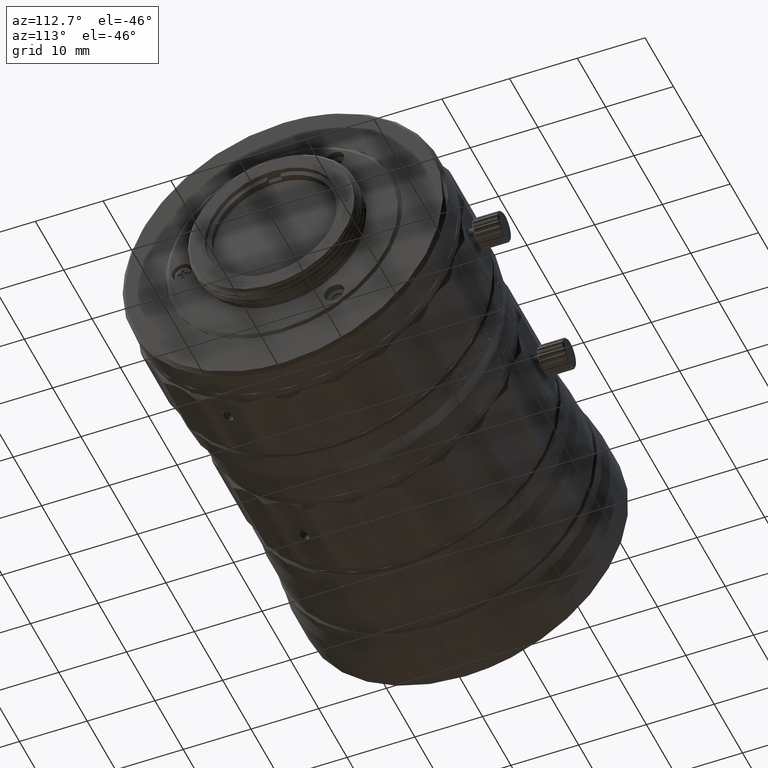
[diagram: clean part render]
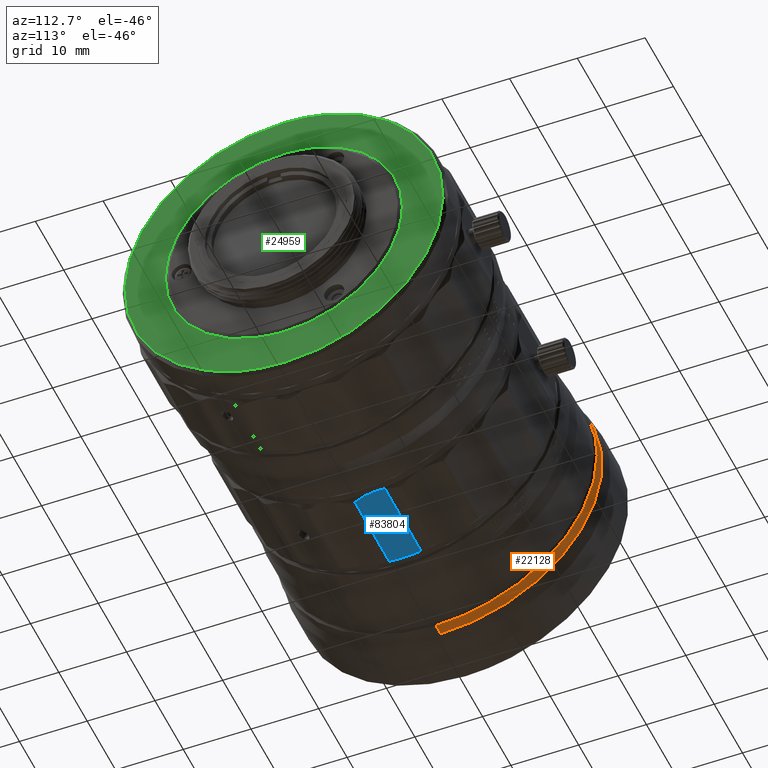
[diagram: same view with three faces highlighted in distinct colors, each labeled with its STEP entity id]
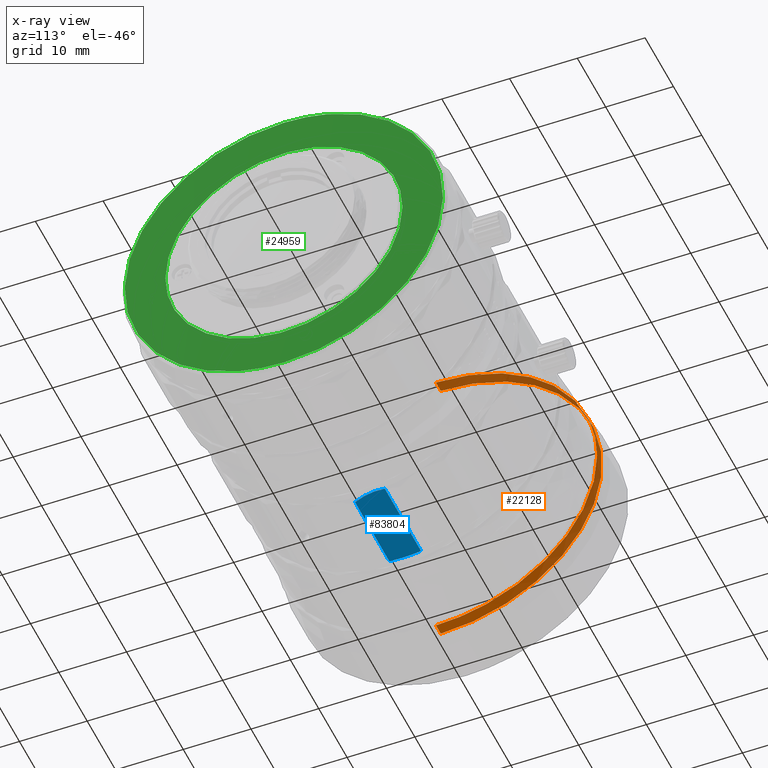
[diagram: x-ray of the same camera — body ghosted, the three highlighted faces saturated]
A machine part, auxiliary view with three faces highlighted in distinct colors.
The next image is the same camera in x-ray (body ghosted, the three faces saturated) — at least one of them is partly hidden behind the body in this view.
Their STEP definitions:

[orange] entity #22128 — the highlighted face is a freeform B-spline surface patch.
#197 = CARTESIAN_POINT ( 'NONE',  ( 4.769999999999999574, -5.950000492305209926E-09, -23.80000000000000071 ) ) ;
#1173 = CARTESIAN_POINT ( 'NONE',  ( 4.769999999999999574, 23.80000000000000071, 4.881461598664881593E-09 ) ) ;
#2033 = FACE_OUTER_BOUND ( 'NONE', #38216, .T. ) ;
#2082 = CARTESIAN_POINT ( 'NONE',  ( 4.770000000000082174, 23.79999999714050674, -13.94171722266906599 ) ) ;
#2598 = VERTEX_POINT ( 'NONE', #74803 ) ;
#6366 = VERTEX_POINT ( 'NONE', #8466 ) ;
#6526 = CARTESIAN_POINT ( 'NONE',  ( 4.769999999999999574, -5.950000492305209926E-09, 23.80000000000000071 ) ) ;
#8098 = CARTESIAN_POINT ( 'NONE',  ( 4.769999999999999574, -9.762923197329763186E-09, 23.80000000000000071 ) ) ;
#8466 = CARTESIAN_POINT ( 'NONE',  ( 6.469999999999999751, 23.80000000000000071, -4.881461035172710322E-09 ) ) ;
#11566 = EDGE_CURVE ( 'NONE', #12604, #6366, #31521, .T. ) ;
#12561 = CARTESIAN_POINT ( 'NONE',  ( 6.469999999999999751, 13.94171720802469494, 23.80000000571898155 ) ) ;
#12604 = VERTEX_POINT ( 'NONE', #74455 ) ;
#15003 = CARTESIAN_POINT ( 'NONE',  ( 6.469999999999999751, 23.79999999714051384, 13.94171722266907310 ) ) ;
#15422 = CARTESIAN_POINT ( 'NONE',  ( 4.769999999999999574, 13.94171721778761253, -23.80000000000000071 ) ) ;
#15769 = EDGE_CURVE ( 'NONE', #2598, #22667, #23166, .T. ) ;
#17754 = CARTESIAN_POINT ( 'NONE',  ( 6.469999999999999751, -4.881461035172710322E-09, 23.80000000000000071 ) ) ;
#18617 = CARTESIAN_POINT ( 'NONE',  ( 6.469999999999999751, 23.80000000000000071, -4.881461035172710322E-09 ) ) ;
#20248 = CARTESIAN_POINT ( 'NONE',  ( 4.769999999999999574, -5.950000492305209926E-09, -23.80000000000000071 ) ) ;
#22128 = ADVANCED_FACE ( 'NONE', ( #2033 ), #23925, .F. ) ;
#22667 = VERTEX_POINT ( 'NONE', #197 ) ;
#23166 =( BOUNDED_CURVE ( )  B_SPLINE_CURVE ( 3, ( #61354, #54441, #41428, #34963, #2082, #54869, #20248 ),
 .UNSPECIFIED., .F., .F. ) 
 B_SPLINE_CURVE_WITH_KNOTS ( ( 4, 3, 4 ),
 ( -3.141592653589795336, -1.570796326794897668, 0.0000000000000000000 ),
 .UNSPECIFIED. ) 
 CURVE ( )  GEOMETRIC_REPRESENTATION_ITEM ( )  RATIONAL_B_SPLINE_CURVE ( ( 1.000000000000000000, 0.8047378540760217192, 0.8047378540760217192, 1.000000000000000000, 0.8047378540760217192, 0.8047378540760217192, 1.000000000000000000 ) ) 
 REPRESENTATION_ITEM ( '' )  );
#23785 =( BOUNDED_CURVE ( )  B_SPLINE_CURVE ( 3, ( #38859, #65238, #58764, #52265 ),
 .UNSPECIFIED., .F., .F. ) 
 B_SPLINE_CURVE_WITH_KNOTS ( ( 4, 4 ),
 ( -1.570796326794895004, 0.0000000000000000000 ),
 .UNSPECIFIED. ) 
 CURVE ( )  GEOMETRIC_REPRESENTATION_ITEM ( )  RATIONAL_B_SPLINE_CURVE ( ( 1.000000000000000000, 0.8047378540760217192, 0.8047378540760217192, 1.000000000000000000 ) ) 
 REPRESENTATION_ITEM ( '' )  );
#23925 =( BOUNDED_SURFACE ( )  B_SPLINE_SURFACE ( 1, 3, ( 
 ( #35340, #15422, #34913, #1173, #74692, #42244, #8098 ),
 ( #61307, #60015, #47023, #81187, #15003, #55242, #60438 ) ),
 .UNSPECIFIED., .F., .F., .F. ) 
 B_SPLINE_SURFACE_WITH_KNOTS ( ( 2, 2 ),
 ( 4, 3, 4 ),
 ( 1.044915787882500111E-15, 1.000000000000000000 ),
 ( 0.0000000000000000000, 0.5000000000000000000, 1.000000000000000000 ),
 .UNSPECIFIED. ) 
 GEOMETRIC_REPRESENTATION_ITEM ( )  RATIONAL_B_SPLINE_SURFACE ( (
 ( 1.000000000000000000, 0.8047378540760217192, 0.8047378540760217192, 1.000000000000000000, 0.8047378540760217192, 0.8047378540760217192, 1.000000000000000000),
 ( 1.000000000000000000, 0.8047378540760217192, 0.8047378540760217192, 1.000000000000000000, 0.8047378540760217192, 0.8047378540760217192, 1.000000000000000000) ) ) 
 REPRESENTATION_ITEM ( '' )  SURFACE ( )  );
#26924 = VERTEX_POINT ( 'NONE', #42525 ) ;
#28062 = CARTESIAN_POINT ( 'NONE',  ( 4.769999999999999574, -5.950000492305209926E-09, -23.80000000000000071 ) ) ;
#28248 = ORIENTED_EDGE ( 'NONE', *, *, #15769, .F. ) ;
#29324 = B_SPLINE_CURVE_WITH_KNOTS ( 'NONE', 1,
 ( #6526, #55373 ),
 .UNSPECIFIED., .F., .F.,
 ( 2, 2 ),
 ( -1.000000000000000000, 0.0000000000000000000 ),
 .UNSPECIFIED. ) ;
#29334 = CARTESIAN_POINT ( 'NONE',  ( 6.469999999999999751, 1.627153887338930056E-09, -23.80000000000000071 ) ) ;
#30104 = ORIENTED_EDGE ( 'NONE', *, *, #73341, .T. ) ;
#31521 =( BOUNDED_CURVE ( )  B_SPLINE_CURVE ( 3, ( #17754, #12561, #58455, #18617 ),
 .UNSPECIFIED., .F., .F. ) 
 B_SPLINE_CURVE_WITH_KNOTS ( ( 4, 4 ),
 ( -1.570796326794895004, 0.0000000000000000000 ),
 .UNSPECIFIED. ) 
 CURVE ( )  GEOMETRIC_REPRESENTATION_ITEM ( )  RATIONAL_B_SPLINE_CURVE ( ( 1.000000000000000000, 0.8047378540760217192, 0.8047378540760217192, 1.000000000000000000 ) ) 
 REPRESENTATION_ITEM ( '' )  );
#34913 = CARTESIAN_POINT ( 'NONE',  ( 4.769999999999999574, 23.80000000285949469, -13.94171721290615196 ) ) ;
#34963 = CARTESIAN_POINT ( 'NONE',  ( 4.770000000000051976, 23.80000000000000071, -4.881456314003285039E-09 ) ) ;
#35340 = CARTESIAN_POINT ( 'NONE',  ( 4.769999999999999574, 0.0000000000000000000, -23.80000000000000071 ) ) ;
#38216 = EDGE_LOOP ( 'NONE', ( #68189, #80564, #30104, #83932, #28248 ) ) ;
#38859 = CARTESIAN_POINT ( 'NONE',  ( 6.469999999999999751, 23.80000000000000071, -4.881461035172710322E-09 ) ) ;
#41393 = B_SPLINE_CURVE_WITH_KNOTS ( 'NONE', 1,
 ( #29334, #28062 ),
 .UNSPECIFIED., .F., .F.,
 ( 2, 2 ),
 ( -1.000000000000000000, 0.0000000000000000000 ),
 .UNSPECIFIED. ) ;
#41428 = CARTESIAN_POINT ( 'NONE',  ( 4.770000000000022666, 23.80000000285949113, 13.94171721290615373 ) ) ;
#42244 = CARTESIAN_POINT ( 'NONE',  ( 4.769999999999999574, 13.94171720802468961, 23.80000000571899577 ) ) ;
#42525 = CARTESIAN_POINT ( 'NONE',  ( 6.469999999999999751, 1.627153887338930056E-09, -23.80000000000000071 ) ) ;
#44364 = EDGE_CURVE ( 'NONE', #2598, #12604, #29324, .T. ) ;
#47023 = CARTESIAN_POINT ( 'NONE',  ( 6.469999999999999751, 23.80000000285949469, -13.94171721290615196 ) ) ;
#52265 = CARTESIAN_POINT ( 'NONE',  ( 6.469999999999999751, 1.627153887338930056E-09, -23.80000000000000071 ) ) ;
#52410 = EDGE_CURVE ( 'NONE', #26924, #22667, #41393, .T. ) ;
#54441 = CARTESIAN_POINT ( 'NONE',  ( 4.769999999999999574, 13.94171721778761430, 23.80000000000000071 ) ) ;
#54869 = CARTESIAN_POINT ( 'NONE',  ( 4.770000000000105267, 13.94171720802469849, -23.80000000571898155 ) ) ;
#55242 = CARTESIAN_POINT ( 'NONE',  ( 6.469999999999999751, 13.94171720802468961, 23.80000000571899577 ) ) ;
#55373 = CARTESIAN_POINT ( 'NONE',  ( 6.469999999999999751, -4.881461035172710322E-09, 23.80000000000000071 ) ) ;
#58455 = CARTESIAN_POINT ( 'NONE',  ( 6.469999999999999751, 23.79999999714050674, 13.94171722266906954 ) ) ;
#58764 = CARTESIAN_POINT ( 'NONE',  ( 6.469999999999999751, 13.94171721778761430, -23.80000000000000071 ) ) ;
#60015 = CARTESIAN_POINT ( 'NONE',  ( 6.469999999999999751, 13.94171721778761253, -23.80000000000000071 ) ) ;
#60438 = CARTESIAN_POINT ( 'NONE',  ( 6.469999999999999751, -9.762923197329763186E-09, 23.80000000000000071 ) ) ;
#61307 = CARTESIAN_POINT ( 'NONE',  ( 6.469999999999999751, 0.0000000000000000000, -23.80000000000000071 ) ) ;
#61354 = CARTESIAN_POINT ( 'NONE',  ( 4.769999999999999574, -5.950000492305209926E-09, 23.80000000000000071 ) ) ;
#65238 = CARTESIAN_POINT ( 'NONE',  ( 6.469999999999999751, 23.80000000285949113, -13.94171721290615196 ) ) ;
#68189 = ORIENTED_EDGE ( 'NONE', *, *, #44364, .T. ) ;
#73341 = EDGE_CURVE ( 'NONE', #6366, #26924, #23785, .T. ) ;
#74455 = CARTESIAN_POINT ( 'NONE',  ( 6.469999999999999751, -4.881461035172710322E-09, 23.80000000000000071 ) ) ;
#74692 = CARTESIAN_POINT ( 'NONE',  ( 4.769999999999999574, 23.79999999714051384, 13.94171722266907310 ) ) ;
#74803 = CARTESIAN_POINT ( 'NONE',  ( 4.769999999999999574, -5.950000492305209926E-09, 23.80000000000000071 ) ) ;
#80564 = ORIENTED_EDGE ( 'NONE', *, *, #11566, .T. ) ;
#81187 = CARTESIAN_POINT ( 'NONE',  ( 6.469999999999999751, 23.80000000000000071, 4.881461598664881593E-09 ) ) ;
#83932 = ORIENTED_EDGE ( 'NONE', *, *, #52410, .T. ) ;

[blue] entity #83804 — the highlighted face is a freeform B-spline surface patch.
#272 = CARTESIAN_POINT ( 'NONE',  ( 32.27999999677599874, 1.457109551797764579, -22.90515753301488289 ) ) ;
#1134 = CARTESIAN_POINT ( 'NONE',  ( 32.26587094612600737, 1.070177678048383152, -22.94170347521233211 ) ) ;
#2255 = EDGE_CURVE ( 'NONE', #37574, #7650, #60305, .T. ) ;
#3095 = CARTESIAN_POINT ( 'NONE',  ( 19.28000000322399998, 2.210965546794885661, -22.84866383605221785 ) ) ;
#3966 = EDGE_CURVE ( 'NONE', #69818, #22777, #63121, .T. ) ;
#4426 = CARTESIAN_POINT ( 'NONE',  ( 32.17557794114490122, 3.209657516488040319, -22.82990308941354840 ) ) ;
#5566 = B_SPLINE_CURVE_WITH_KNOTS ( 'NONE', 3,
 ( #51798, #26683, #52233, #53064 ),
 .UNSPECIFIED., .F., .F.,
 ( 4, 4 ),
 ( -1.000000000000000000, 0.0000000000000000000 ),
 .UNSPECIFIED. ) ;
#6300 = CARTESIAN_POINT ( 'NONE',  ( 19.20200000000000173, 1.680053511340783512, -22.82990308927469414 ) ) ;
#6736 = CARTESIAN_POINT ( 'NONE',  ( 19.20200000000000173, -1.329233105894599420, -23.35174938064852412 ) ) ;
#7102 = ORIENTED_EDGE ( 'NONE', *, *, #3966, .T. ) ;
#7650 = VERTEX_POINT ( 'NONE', #62725 ) ;
#9587 = CARTESIAN_POINT ( 'NONE',  ( 19.71955022587420103, -1.329233103309227948, -23.35174938016949753 ) ) ;
#10006 = CARTESIAN_POINT ( 'NONE',  ( 19.31480735427867046, 2.709626969741594227, -22.82990308908979671 ) ) ;
#13124 = EDGE_CURVE ( 'NONE', #53673, #37574, #5566, .T. ) ;
#14522 = CARTESIAN_POINT ( 'NONE',  ( 32.22466121506350589, 0.6192571066009576741, -22.99762213748767792 ) ) ;
#18831 = CARTESIAN_POINT ( 'NONE',  ( 32.35799999999999699, -1.329233105894599420, -23.35174938064852412 ) ) ;
#19727 = B_SPLINE_CURVE_WITH_KNOTS ( 'NONE', 1,
 ( #72813, #71949 ),
 .UNSPECIFIED., .F., .F.,
 ( 2, 2 ),
 ( -1.000000000000000000, 0.0000000000000000000 ),
 .UNSPECIFIED. ) ;
#21214 = VERTEX_POINT ( 'NONE', #36696 ) ;
#21372 = ORIENTED_EDGE ( 'NONE', *, *, #61889, .T. ) ;
#22777 = VERTEX_POINT ( 'NONE', #70105 ) ;
#26109 = B_SPLINE_CURVE_WITH_KNOTS ( 'NONE', 3,
 ( #9587, #35986, #28199, #49772 ),
 .UNSPECIFIED., .F., .F.,
 ( 4, 4 ),
 ( -1.000000000000000000, 0.0000000000000000000 ),
 .UNSPECIFIED. ) ;
#26683 = CARTESIAN_POINT ( 'NONE',  ( 19.32637686785333386, 0.5704752841583217160, -22.99637686635721678 ) ) ;
#28199 = CARTESIAN_POINT ( 'NONE',  ( 19.49105551913333301, -0.4423691626633756702, -23.16105551767118698 ) ) ;
#29290 = EDGE_CURVE ( 'NONE', #7650, #81545, #19727, .T. ) ;
#29468 = CARTESIAN_POINT ( 'NONE',  ( 19.38442205885514724, 3.209657519609705023, -22.82990308897464971 ) ) ;
#30789 = CARTESIAN_POINT ( 'NONE',  ( 32.24519264572133181, 2.709626969741594227, -22.82990308908979671 ) ) ;
#31820 = CARTESIAN_POINT ( 'NONE',  ( 19.20200000000000173, 3.209657516408271682, -22.82990308899999476 ) ) ;
#32679 = CARTESIAN_POINT ( 'NONE',  ( 19.20200000000000173, 0.1604599902861284233, -23.00461411665193978 ) ) ;
#33000 = ORIENTED_EDGE ( 'NONE', *, *, #2255, .T. ) ;
#33565 = CARTESIAN_POINT ( 'NONE',  ( 31.84044977400115428, -1.329233105566833828, -23.35174938029784997 ) ) ;
#34439 = CARTESIAN_POINT ( 'NONE',  ( 32.09393521501598912, -0.3296386441897780628, -23.13909875525505555 ) ) ;
#34872 = CARTESIAN_POINT ( 'NONE',  ( 32.18521761533224179, 0.2974866220508049497, -23.04295066738458786 ) ) ;
#35986 = CARTESIAN_POINT ( 'NONE',  ( 19.59119539516000330, -0.8858325707029077734, -23.24842611075178311 ) ) ;
#36696 = CARTESIAN_POINT ( 'NONE',  ( 19.71955022587420103, -1.329233103309227948, -23.35174938016949753 ) ) ;
#37574 = VERTEX_POINT ( 'NONE', #64919 ) ;
#39173 = CARTESIAN_POINT ( 'NONE',  ( 32.35799999999999699, 0.1604599902861284233, -23.00461411665193978 ) ) ;
#41063 = CARTESIAN_POINT ( 'NONE',  ( 19.41913059673269970, 3.349535387065700062E-10, -23.08913059621859887 ) ) ;
#42558 = CARTESIAN_POINT ( 'NONE',  ( 32.27999999919045138, 1.715055638947205141, -22.88582714600144641 ) ) ;
#45214 = CARTESIAN_POINT ( 'NONE',  ( 32.35799999999999699, 1.680053511340783512, -22.82990308927469414 ) ) ;
#46097 = B_SPLINE_CURVE_WITH_KNOTS ( 'NONE', 3,
 ( #4426, #30789, #83554, #71458 ),
 .UNSPECIFIED., .F., .F.,
 ( 4, 4 ),
 ( -1.000000000000000000, 0.0000000000000000000 ),
 .UNSPECIFIED. ) ;
#47164 = ORIENTED_EDGE ( 'NONE', *, *, #29290, .T. ) ;
#48635 = ORIENTED_EDGE ( 'NONE', *, *, #50331, .T. ) ;
#49772 = CARTESIAN_POINT ( 'NONE',  ( 19.41913059673269970, 3.349535387065700062E-10, -23.08913059621859887 ) ) ;
#50331 = EDGE_CURVE ( 'NONE', #22777, #21214, #84964, .T. ) ;
#51605 = ORIENTED_EDGE ( 'NONE', *, *, #79450, .T. ) ;
#51798 = CARTESIAN_POINT ( 'NONE',  ( 19.41913059673269970, 3.349535387065700062E-10, -23.08913059621859887 ) ) ;
#52233 = CARTESIAN_POINT ( 'NONE',  ( 19.28000000322399998, 1.142892869044690451, -22.92870481813812944 ) ) ;
#53045 = CARTESIAN_POINT ( 'NONE',  ( 32.20170150775724238, 0.4261691964095388752, -23.02443873628739368 ) ) ;
#53064 = CARTESIAN_POINT ( 'NONE',  ( 19.28000000082349885, 1.715055643642210192, -22.88582714566360110 ) ) ;
#53673 = VERTEX_POINT ( 'NONE', #41063 ) ;
#53917 = CARTESIAN_POINT ( 'NONE',  ( 32.27999999919045138, 1.715055638947205141, -22.88582714600144641 ) ) ;
#54348 = CARTESIAN_POINT ( 'NONE',  ( 31.98509594276000101, -0.8295543152225133277, -23.23531188801453595 ) ) ;
#59499 = FACE_OUTER_BOUND ( 'NONE', #61643, .T. ) ;
#60305 = B_SPLINE_CURVE_WITH_KNOTS ( 'NONE', 3,
 ( #81394, #3095, #10006, #29468 ),
 .UNSPECIFIED., .F., .F.,
 ( 4, 4 ),
 ( -1.000000000000000000, 0.0000000000000000000 ),
 .UNSPECIFIED. ) ;
#61643 = EDGE_LOOP ( 'NONE', ( #78208, #33000, #47164, #21372, #7102, #48635, #51605 ) ) ;
#61889 = EDGE_CURVE ( 'NONE', #81545, #69818, #46097, .T. ) ;
#62725 = CARTESIAN_POINT ( 'NONE',  ( 19.38442205885514724, 3.209657519609705023, -22.82990308897464971 ) ) ;
#63121 = B_SPLINE_CURVE_WITH_KNOTS ( 'NONE', 3,
 ( #53917, #272, #1134, #14522, #53045, #34872, #80295, #34439, #54348, #80721 ),
 .UNSPECIFIED., .F., .F.,
 ( 4, 1, 1, 2, 2, 4 ),
 ( -1.000000000000000000, -0.7499999999999987788, -0.6249999999999982236, -0.5624999999999978906, -0.4999999999999975575, 0.0000000000000000000 ),
 .UNSPECIFIED. ) ;
#64919 = CARTESIAN_POINT ( 'NONE',  ( 19.28000000082349885, 1.715055643642210192, -22.88582714566360110 ) ) ;
#65559 = CARTESIAN_POINT ( 'NONE',  ( 32.35799999999999699, 3.209657516408271682, -22.82990308899999476 ) ) ;
#69818 = VERTEX_POINT ( 'NONE', #42558 ) ;
#70105 = CARTESIAN_POINT ( 'NONE',  ( 31.84044977400115428, -1.329233105566833828, -23.35174938029784997 ) ) ;
#71458 = CARTESIAN_POINT ( 'NONE',  ( 32.27999999919045138, 1.715055638947205141, -22.88582714600144641 ) ) ;
#71949 = CARTESIAN_POINT ( 'NONE',  ( 32.17557794114490122, 3.209657516488040319, -22.82990308941354840 ) ) ;
#72813 = CARTESIAN_POINT ( 'NONE',  ( 19.38442205885514724, 3.209657519609705023, -22.82990308897464971 ) ) ;
#74223 = CARTESIAN_POINT ( 'NONE',  ( 19.71955022587420103, -1.329233103309227948, -23.35174938016949753 ) ) ;
#78208 = ORIENTED_EDGE ( 'NONE', *, *, #13124, .T. ) ;
#78296 =( BOUNDED_SURFACE ( )  B_SPLINE_SURFACE ( 1, 3, ( 
 ( #18831, #39173, #45214, #65559 ),
 ( #6736, #32679, #6300, #31820 ) ),
 .UNSPECIFIED., .F., .F., .F. ) 
 B_SPLINE_SURFACE_WITH_KNOTS ( ( 2, 2 ),
 ( 4, 4 ),
 ( 0.0000000000000000000, 1.000000000000000000 ),
 ( 0.0000000000000000000, 1.000000000000000000 ),
 .UNSPECIFIED. ) 
 GEOMETRIC_REPRESENTATION_ITEM ( )  RATIONAL_B_SPLINE_SURFACE ( (
 ( 1.000000000000000000, 0.9956370041098686618, 0.9956370041098686618, 1.000000000000000000),
 ( 1.000000000000000000, 0.9956370041098686618, 0.9956370041098686618, 1.000000000000000000) ) ) 
 REPRESENTATION_ITEM ( '' )  SURFACE ( )  );
#79450 = EDGE_CURVE ( 'NONE', #21214, #53673, #26109, .T. ) ;
#80295 = CARTESIAN_POINT ( 'NONE',  ( 32.17609663864600833, 0.2311849920105874812, -23.05282857619269876 ) ) ;
#80721 = CARTESIAN_POINT ( 'NONE',  ( 31.84044977400115428, -1.329233105566833828, -23.35174938029784997 ) ) ;
#81394 = CARTESIAN_POINT ( 'NONE',  ( 19.28000000082349885, 1.715055643642210192, -22.88582714566360110 ) ) ;
#81545 = VERTEX_POINT ( 'NONE', #84074 ) ;
#83554 = CARTESIAN_POINT ( 'NONE',  ( 32.27999999677599874, 2.210965546794885661, -22.84866383605221785 ) ) ;
#83804 = ADVANCED_FACE ( 'NONE', ( #59499 ), #78296, .T. ) ;
#84074 = CARTESIAN_POINT ( 'NONE',  ( 32.17557794114490122, 3.209657516488040319, -22.82990308941354840 ) ) ;
#84964 = B_SPLINE_CURVE_WITH_KNOTS ( 'NONE', 1,
 ( #33565, #74223 ),
 .UNSPECIFIED., .F., .F.,
 ( 2, 2 ),
 ( -1.000000000000000000, 0.0000000000000000000 ),
 .UNSPECIFIED. ) ;

[green] entity #24959 — the highlighted face is a freeform B-spline surface patch.
#329 = CARTESIAN_POINT ( 'NONE',  ( 60.11770000000001346, 2.292586318527240152, 17.50000000248226328 ) ) ;
#2679 = CARTESIAN_POINT ( 'NONE',  ( 60.11769957200000647, -6.426573372610190329E-09, -23.49999735999345063 ) ) ;
#2738 = CARTESIAN_POINT ( 'NONE',  ( 60.11770000000001346, -13.99547200165090111, -10.75326532932669110 ) ) ;
#2988 = CARTESIAN_POINT ( 'NONE',  ( 60.11769999999999925, 6.094352455622207287, 22.74814748551914434 ) ) ;
#3157 = CARTESIAN_POINT ( 'NONE',  ( 60.11770000000001346, -4.578886563665014009, -17.04522655470270820 ) ) ;
#4007 = CARTESIAN_POINT ( 'NONE',  ( 60.11770000000001346, -2.292586318527240152, -17.50000000248226328 ) ) ;
#4465 = CARTESIAN_POINT ( 'NONE',  ( 60.11770000000000636, -18.68434009257223849, -14.33578662822841920 ) ) ;
#7812 = CARTESIAN_POINT ( 'NONE',  ( 60.11770000000000636, 23.78199733199999955, -23.78199733199999955 ) ) ;
#9022 = CARTESIAN_POINT ( 'NONE',  ( 60.11769957200000647, -1.406759730189306122E-09, 23.49999735999345063 ) ) ;
#9056 = CARTESIAN_POINT ( 'NONE',  ( 60.11770000000001346, 22.30023417683530340, -7.570924682519849291 ) ) ;
#9225 = CARTESIAN_POINT ( 'NONE',  ( 60.11770000000001346, -15.29055692598348593, -8.815033720014008978 ) ) ;
#9473 = CARTESIAN_POINT ( 'NONE',  ( 60.11769999999999925, 17.70546245976166944, 15.52855253728110796 ) ) ;
#9641 = CARTESIAN_POINT ( 'NONE',  ( 60.11770000000000636, 17.50000000248225973, -2.292586318527269906 ) ) ;
#10513 = CARTESIAN_POINT ( 'NONE',  ( 60.11770000000000636, -11.77601134539860084, -20.39472726174725636 ) ) ;
#10934 = CARTESIAN_POINT ( 'NONE',  ( 60.11770000000002057, -22.74814742210050866, -6.094352455622161102 ) ) ;
#11365 = CARTESIAN_POINT ( 'NONE',  ( 60.11769999999999925, -20.39472726174728479, 11.77601134539856709 ) ) ;
#11792 = CARTESIAN_POINT ( 'NONE',  ( 60.11769999999999925, -22.30023417683531051, 7.570924682519851956 ) ) ;
#12078 = VERTEX_POINT ( 'NONE', #9022 ) ;
#13808 = VERTEX_POINT ( 'NONE', #43589 ) ;
#13848 = FACE_OUTER_BOUND ( 'NONE', #78747, .T. ) ;
#14666 = CARTESIAN_POINT ( 'NONE',  ( 60.11769957200000647, -6.426573372610190329E-09, -23.49999735999345063 ) ) ;
#15269 = CARTESIAN_POINT ( 'NONE',  ( 60.11770000000000636, -17.50000000082740215, -4.785746665357729014E-09 ) ) ;
#15527 = CARTESIAN_POINT ( 'NONE',  ( 60.11770000000002057, 11.77601140881725073, -20.39472726174726702 ) ) ;
#15944 = CARTESIAN_POINT ( 'NONE',  ( 60.11770000000001346, 22.30023417683531761, 7.570924682519815541 ) ) ;
#16795 = CARTESIAN_POINT ( 'NONE',  ( 60.11769999999999925, 15.52855253728111506, 17.70546245976166944 ) ) ;
#16998 = CARTESIAN_POINT ( 'NONE',  ( 60.11770000000001346, -22.30023417683531761, -7.570924682519805771 ) ) ;
#17279 = CARTESIAN_POINT ( 'NONE',  ( 60.11770000000000636, 17.50000000082740215, -1.047587150627769928E-09 ) ) ;
#17412 = CARTESIAN_POINT ( 'NONE',  ( 60.11770000000001346, -6.094352455622148668, 22.74814742210051577 ) ) ;
#18296 = ORIENTED_EDGE ( 'NONE', *, *, #36909, .T. ) ;
#19652 = EDGE_LOOP ( 'NONE', ( #67784, #64179 ) ) ;
#19791 = CARTESIAN_POINT ( 'NONE',  ( 60.11770000000001346, -10.75326532932672130, 13.99547200165086025 ) ) ;
#20402 = CARTESIAN_POINT ( 'NONE',  ( 60.11769957200000647, -6.426573372610190329E-09, -23.49999735999345063 ) ) ;
#22437 = CARTESIAN_POINT ( 'NONE',  ( 60.11770000000001346, 14.33578662822842276, -18.68434009257223494 ) ) ;
#22781 = B_SPLINE_CURVE_WITH_KNOTS ( 'NONE', 3,
 ( #14666, #80008, #74380, #41484, #67886, #76089, #15527, #22437, #48823, #37133, #62253, #75219, #81707, #9056, #22858, #50080, #63078, #68313, #36291, #36711, #15944, #23713, #82972, #41912, #9473, #16795, #56615, #63517, #43176, #29362, #2988, #49248, #76502, #42341 ),
 .UNSPECIFIED., .F., .F.,
 ( 4, 2, 2, 2, 2, 2, 2, 2, 2, 2, 2, 2, 2, 2, 2, 2, 4 ),
 ( 0.0000000000000000000, 0.1963495408493624306, 0.3926990816987248611, 0.5890486225480870974, 0.7853981633974495002, 0.9817477042468117920, 1.178097245096173973, 1.374446785945536265, 1.570796326794898334, 1.767145867644260626, 1.963495408493622474, 2.159844949342984766, 2.356194490192346613, 2.552544031041708905, 2.748893571891070753, 2.945243112740432601, 3.141592653589795336 ),
 .UNSPECIFIED. ) ;
#22858 = CARTESIAN_POINT ( 'NONE',  ( 60.11770000000001346, 22.74814748551916566, -6.094352455622155773 ) ) ;
#23459 = CARTESIAN_POINT ( 'NONE',  ( 60.11770000000001346, 10.75326532932672485, -13.99547200165086913 ) ) ;
#23713 = CARTESIAN_POINT ( 'NONE',  ( 60.11769999999999925, 21.12209901595986139, 10.41519461347082043 ) ) ;
#24351 = CARTESIAN_POINT ( 'NONE',  ( 60.11770000000001346, -23.49999735198037243, -1.539307788212998407 ) ) ;
#24959 = ADVANCED_FACE ( 'NONE', ( #44591, #13848 ), #33295, .T. ) ;
#25017 = CARTESIAN_POINT ( 'NONE',  ( 60.11770000000001346, -8.815033720013962792, 15.29055692598350902 ) ) ;
#25204 = CARTESIAN_POINT ( 'NONE',  ( 60.11770000000000636, -10.41519461347080977, -21.12209901595987205 ) ) ;
#25633 = CARTESIAN_POINT ( 'NONE',  ( 60.11770000000000636, -22.74814748551916210, 6.094352455622153997 ) ) ;
#25907 = B_SPLINE_CURVE_WITH_KNOTS ( 'NONE', 3,
 ( #70882, #29790, #85123, #52683, #64827, #19791, #25017, #72155, #39715, #329, #79085, #58768, #59610, #59186, #46189, #72590, #66513, #58351 ),
 .UNSPECIFIED., .F., .F.,
 ( 4, 2, 2, 2, 2, 2, 2, 2, 4 ),
 ( 0.0000000000000000000, 0.3926990816987244171, 0.7853981633974488341, 1.178097245096173307, 1.570796326794897668, 1.963495408493622030, 2.356194490192346613, 2.748893571891070753, 3.141592653589795336 ),
 .UNSPECIFIED. ) ;
#28681 = CARTESIAN_POINT ( 'NONE',  ( 60.11770000000001346, 17.04522655470267622, -4.578886563665071741 ) ) ;
#29362 = CARTESIAN_POINT ( 'NONE',  ( 60.11770000000001346, 7.570924682519819982, 22.30023417683531761 ) ) ;
#29790 = CARTESIAN_POINT ( 'NONE',  ( 60.11770000000000636, -17.50000000248226684, 2.292586318527269906 ) ) ;
#30368 = CARTESIAN_POINT ( 'NONE',  ( 60.11770000000001346, -8.815033593176687887, -15.29055705282079458 ) ) ;
#30830 = CARTESIAN_POINT ( 'NONE',  ( 60.11770000000001346, -17.70546245976166588, -15.52855253728110796 ) ) ;
#31260 = CARTESIAN_POINT ( 'NONE',  ( 60.11769999999999925, -10.41519461347077957, 21.12209901595988271 ) ) ;
#31697 = CARTESIAN_POINT ( 'NONE',  ( 60.11770000000001346, -23.34875554969154621, 3.074891648591792315 ) ) ;
#32117 = CARTESIAN_POINT ( 'NONE',  ( 60.11770000000000636, -11.77601140881724895, 20.39472726174726347 ) ) ;
#33295 = B_SPLINE_SURFACE_WITH_KNOTS ( 'NONE', 1, 1, ( 
 ( #67067, #7812 ),
 ( #79617, #41096 ) ),
 .UNSPECIFIED., .F., .F., .F.,
 ( 2, 2 ),
 ( 2, 2 ),
 ( 0.0000000000000000000, 1.000000000000000000 ),
 ( 0.0000000000000000000, 1.000000000000000000 ),
 .UNSPECIFIED. ) ;
#36291 = CARTESIAN_POINT ( 'NONE',  ( 60.11770000000001346, 23.34875561311019254, 3.074891648591783433 ) ) ;
#36711 = CARTESIAN_POINT ( 'NONE',  ( 60.11770000000000636, 22.74814742210050866, 6.094352455622157549 ) ) ;
#36909 = EDGE_CURVE ( 'NONE', #12078, #70052, #61405, .T. ) ;
#37133 = CARTESIAN_POINT ( 'NONE',  ( 60.11770000000002057, 17.70546245976166233, -15.52855253728113283 ) ) ;
#37339 = CARTESIAN_POINT ( 'NONE',  ( 60.11770000000001346, -15.52855253728112750, 17.70546245976165878 ) ) ;
#37771 = CARTESIAN_POINT ( 'NONE',  ( 60.11770000000002767, -23.34875561311020320, -3.074891648591785209 ) ) ;
#38198 = CARTESIAN_POINT ( 'NONE',  ( 60.11770000000000636, -7.570924682519813764, -22.30023417683531761 ) ) ;
#39192 = EDGE_CURVE ( 'NONE', #13808, #57913, #25907, .T. ) ;
#39715 = CARTESIAN_POINT ( 'NONE',  ( 60.11770000000001346, -2.292586318527240152, 17.50000000248226328 ) ) ;
#41096 = CARTESIAN_POINT ( 'NONE',  ( 60.11770000000000636, -23.78199733199999955, -23.78199733199999955 ) ) ;
#41484 = CARTESIAN_POINT ( 'NONE',  ( 60.11770000000001346, 6.094352455622149556, -22.74814742210050511 ) ) ;
#41912 = CARTESIAN_POINT ( 'NONE',  ( 60.11770000000000636, 18.68434009257223849, 14.33578662822842276 ) ) ;
#42341 = CARTESIAN_POINT ( 'NONE',  ( 60.11769957200000647, -1.406759730189306122E-09, 23.49999735999345063 ) ) ;
#42512 = CARTESIAN_POINT ( 'NONE',  ( 60.11770000000001346, 8.815033720013955687, -15.29055692598350724 ) ) ;
#43176 = CARTESIAN_POINT ( 'NONE',  ( 60.11770000000002057, 10.41519461347082043, 21.12209901595987560 ) ) ;
#43379 = CARTESIAN_POINT ( 'NONE',  ( 60.11769999999999925, -21.12209901595986850, -10.41519461347082398 ) ) ;
#43589 = CARTESIAN_POINT ( 'NONE',  ( 60.11770000000000636, -17.50000000082740215, -4.785746665357729014E-09 ) ) ;
#44231 = CARTESIAN_POINT ( 'NONE',  ( 60.11770000000001346, -3.074891648591794979, 23.34875561311019254 ) ) ;
#44591 = FACE_BOUND ( 'NONE', #19652, .T. ) ;
#46189 = CARTESIAN_POINT ( 'NONE',  ( 60.11770000000001346, 15.29055692598348770, 8.815033720014003649 ) ) ;
#48144 = CARTESIAN_POINT ( 'NONE',  ( 60.11770000000000636, 17.50000000082740215, -1.047587150627769928E-09 ) ) ;
#48823 = CARTESIAN_POINT ( 'NONE',  ( 60.11770000000000636, 15.52855253728112928, -17.70546245976164457 ) ) ;
#49248 = CARTESIAN_POINT ( 'NONE',  ( 60.11770000000001346, 3.074891648591729254, 23.34875554969154621 ) ) ;
#49413 = CARTESIAN_POINT ( 'NONE',  ( 60.11770000000001346, -17.50000000248226328, -2.292586318527162437 ) ) ;
#50080 = CARTESIAN_POINT ( 'NONE',  ( 60.11770000000001346, 23.34875554969153555, -3.074891648591791871 ) ) ;
#50282 = CARTESIAN_POINT ( 'NONE',  ( 60.11769957200000647, -1.406759730189306122E-09, 23.49999735999345063 ) ) ;
#50666 = EDGE_CURVE ( 'NONE', #57913, #13808, #84804, .T. ) ;
#51162 = CARTESIAN_POINT ( 'NONE',  ( 60.11770000000001346, -14.33578669164707620, -18.68434009257224560 ) ) ;
#51633 = ORIENTED_EDGE ( 'NONE', *, *, #53780, .T. ) ;
#52446 = CARTESIAN_POINT ( 'NONE',  ( 60.11770000000000636, -3.074891648591731919, -23.34875554969154976 ) ) ;
#52683 = CARTESIAN_POINT ( 'NONE',  ( 60.11769999999999214, -15.29055705282081590, 8.815033593176632820 ) ) ;
#53780 = EDGE_CURVE ( 'NONE', #70052, #12078, #22781, .T. ) ;
#56615 = CARTESIAN_POINT ( 'NONE',  ( 60.11770000000001346, 14.33578669164707797, 18.68434009257224560 ) ) ;
#57248 = CARTESIAN_POINT ( 'NONE',  ( 60.11770000000001346, -18.68434009257222428, 14.33578669164710817 ) ) ;
#57686 = CARTESIAN_POINT ( 'NONE',  ( 60.11770000000001346, -21.12209901595988626, 10.41519461347078845 ) ) ;
#57913 = VERTEX_POINT ( 'NONE', #17279 ) ;
#58351 = CARTESIAN_POINT ( 'NONE',  ( 60.11770000000000636, 17.50000000082740215, -1.047587150627769928E-09 ) ) ;
#58768 = CARTESIAN_POINT ( 'NONE',  ( 60.11770000000001346, 8.815033593176689664, 15.29055705282080524 ) ) ;
#58947 = CARTESIAN_POINT ( 'NONE',  ( 60.11769999999999925, -1.539307788212943118, -23.49999735198036532 ) ) ;
#59186 = CARTESIAN_POINT ( 'NONE',  ( 60.11770000000001346, 13.99547200165089222, 10.75326532932669643 ) ) ;
#59610 = CARTESIAN_POINT ( 'NONE',  ( 60.11770000000001346, 10.75326532932670354, 13.99547200165089400 ) ) ;
#61405 = B_SPLINE_CURVE_WITH_KNOTS ( 'NONE', 3,
 ( #50282, #76707, #44231, #17412, #77996, #31260, #32117, #84880, #37339, #70641, #57248, #11365, #57686, #11792, #25633, #31697, #70215, #24351, #37771, #10934, #16998, #43379, #63716, #4465, #30830, #69783, #51162, #10513, #25204, #38198, #78425, #52446, #58947, #20402 ),
 .UNSPECIFIED., .F., .F.,
 ( 4, 2, 2, 2, 2, 2, 2, 2, 2, 2, 2, 2, 2, 2, 2, 2, 4 ),
 ( 0.0000000000000000000, 0.1963495408493622640, 0.3926990816987245281, 0.5890486225480866533, 0.7853981633974488341, 0.9817477042468110149, 1.178097245096173307, 1.374446785945535376, 1.570796326794897446, 1.767145867644259516, 1.963495408493621808, 2.159844949342983877, 2.356194490192346169, 2.552544031041708905, 2.748893571891070753, 2.945243112740433045, 3.141592653589795336 ),
 .UNSPECIFIED. ) ;
#62253 = CARTESIAN_POINT ( 'NONE',  ( 60.11770000000001346, 18.68434009257222428, -14.33578669164710284 ) ) ;
#62414 = CARTESIAN_POINT ( 'NONE',  ( 60.11769999999999214, 15.29055705282082300, -8.815033593176632820 ) ) ;
#63078 = CARTESIAN_POINT ( 'NONE',  ( 60.11770000000001346, 23.49999735198036177, -1.539307788212994410 ) ) ;
#63517 = CARTESIAN_POINT ( 'NONE',  ( 60.11769999999999214, 11.77601134539859373, 20.39472726174725281 ) ) ;
#63716 = CARTESIAN_POINT ( 'NONE',  ( 60.11770000000001346, -20.39472726174726702, -11.77601140881725250 ) ) ;
#64179 = ORIENTED_EDGE ( 'NONE', *, *, #50666, .T. ) ;
#64827 = CARTESIAN_POINT ( 'NONE',  ( 60.11770000000001346, -13.99547200165087091, 10.75326532932673196 ) ) ;
#66513 = CARTESIAN_POINT ( 'NONE',  ( 60.11770000000001346, 17.50000000248225618, 2.292586318527162881 ) ) ;
#67067 = CARTESIAN_POINT ( 'NONE',  ( 60.11770000000000636, 23.78199733199999955, 23.78199733199999955 ) ) ;
#67784 = ORIENTED_EDGE ( 'NONE', *, *, #39192, .T. ) ;
#67886 = CARTESIAN_POINT ( 'NONE',  ( 60.11770000000001346, 7.570924682519851068, -22.30023417683530695 ) ) ;
#68057 = CARTESIAN_POINT ( 'NONE',  ( 60.11770000000001346, 13.99547200165086736, -10.75326532932672130 ) ) ;
#68313 = CARTESIAN_POINT ( 'NONE',  ( 60.11770000000000636, 23.49999735198036888, 1.539307788212995298 ) ) ;
#69750 = CARTESIAN_POINT ( 'NONE',  ( 60.11770000000001346, 2.292586318527240152, -17.50000000248226328 ) ) ;
#69783 = CARTESIAN_POINT ( 'NONE',  ( 60.11770000000000636, -15.52855253728110974, -17.70546245976167654 ) ) ;
#70052 = VERTEX_POINT ( 'NONE', #2679 ) ;
#70215 = CARTESIAN_POINT ( 'NONE',  ( 60.11770000000001346, -23.49999735198036177, 1.539307788212994410 ) ) ;
#70641 = CARTESIAN_POINT ( 'NONE',  ( 60.11770000000000636, -17.70546245976165523, 15.52855253728112928 ) ) ;
#70882 = CARTESIAN_POINT ( 'NONE',  ( 60.11770000000000636, -17.50000000082740215, -4.785746665357729014E-09 ) ) ;
#72155 = CARTESIAN_POINT ( 'NONE',  ( 60.11770000000001346, -4.578886436827742656, 17.04522668153999732 ) ) ;
#72590 = CARTESIAN_POINT ( 'NONE',  ( 60.11769999999999925, 17.04522668154001508, 4.578886436827700912 ) ) ;
#74380 = CARTESIAN_POINT ( 'NONE',  ( 60.11770000000002057, 3.074891648591794535, -23.34875561311019254 ) ) ;
#74545 = CARTESIAN_POINT ( 'NONE',  ( 60.11769999999999925, -17.04522668154001863, -4.578886436827693807 ) ) ;
#75219 = CARTESIAN_POINT ( 'NONE',  ( 60.11770000000001346, 20.39472726174728123, -11.77601134539857419 ) ) ;
#75829 = CARTESIAN_POINT ( 'NONE',  ( 60.11770000000001346, -10.75326532932669110, -13.99547200165089933 ) ) ;
#76089 = CARTESIAN_POINT ( 'NONE',  ( 60.11770000000002057, 10.41519461347078490, -21.12209901595988981 ) ) ;
#76502 = CARTESIAN_POINT ( 'NONE',  ( 60.11770000000002057, 1.539307788212946670, 23.49999735198037243 ) ) ;
#76707 = CARTESIAN_POINT ( 'NONE',  ( 60.11770000000001346, -1.539307788213015726, 23.49999735198037243 ) ) ;
#77996 = CARTESIAN_POINT ( 'NONE',  ( 60.11769999999999925, -7.570924682519836857, 22.30023417683530340 ) ) ;
#78425 = CARTESIAN_POINT ( 'NONE',  ( 60.11770000000001346, -6.094352455622210840, -22.74814748551914789 ) ) ;
#78747 = EDGE_LOOP ( 'NONE', ( #18296, #51633 ) ) ;
#79085 = CARTESIAN_POINT ( 'NONE',  ( 60.11770000000001346, 4.578886563665014009, 17.04522655470270465 ) ) ;
#79617 = CARTESIAN_POINT ( 'NONE',  ( 60.11770000000000636, -23.78199733199999955, 23.78199733199999955 ) ) ;
#80008 = CARTESIAN_POINT ( 'NONE',  ( 60.11770000000001346, 1.539307788213016170, -23.49999735198036532 ) ) ;
#81034 = CARTESIAN_POINT ( 'NONE',  ( 60.11770000000001346, 4.578886436827747097, -17.04522668153999732 ) ) ;
#81707 = CARTESIAN_POINT ( 'NONE',  ( 60.11770000000001346, 21.12209901595988626, -10.41519461347078135 ) ) ;
#82972 = CARTESIAN_POINT ( 'NONE',  ( 60.11770000000001346, 20.39472726174726347, 11.77601140881725250 ) ) ;
#84804 = B_SPLINE_CURVE_WITH_KNOTS ( 'NONE', 3,
 ( #48144, #9641, #28681, #62414, #68057, #23459, #42512, #81034, #69750, #4007, #3157, #30368, #75829, #2738, #9225, #74545, #49413, #15269 ),
 .UNSPECIFIED., .F., .F.,
 ( 4, 2, 2, 2, 2, 2, 2, 2, 4 ),
 ( 0.0000000000000000000, 0.3926990816987244171, 0.7853981633974488341, 1.178097245096173307, 1.570796326794897668, 1.963495408493622030, 2.356194490192346613, 2.748893571891070753, 3.141592653589795336 ),
 .UNSPECIFIED. ) ;
#84880 = CARTESIAN_POINT ( 'NONE',  ( 60.11770000000001346, -14.33578662822842631, 18.68434009257223494 ) ) ;
#85123 = CARTESIAN_POINT ( 'NONE',  ( 60.11770000000001346, -17.04522655470268688, 4.578886563665071741 ) ) ;